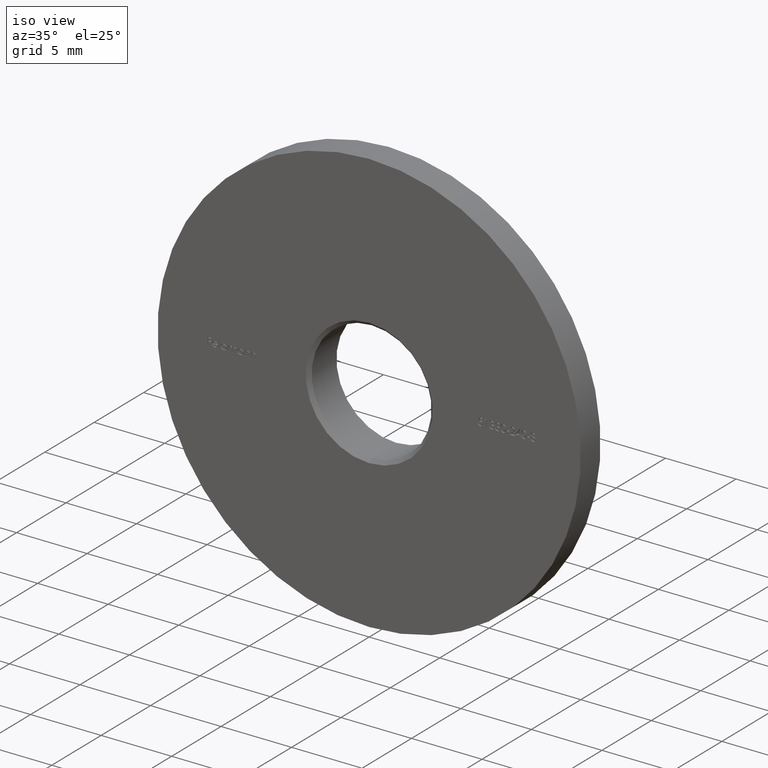
[diagram: clean part render]
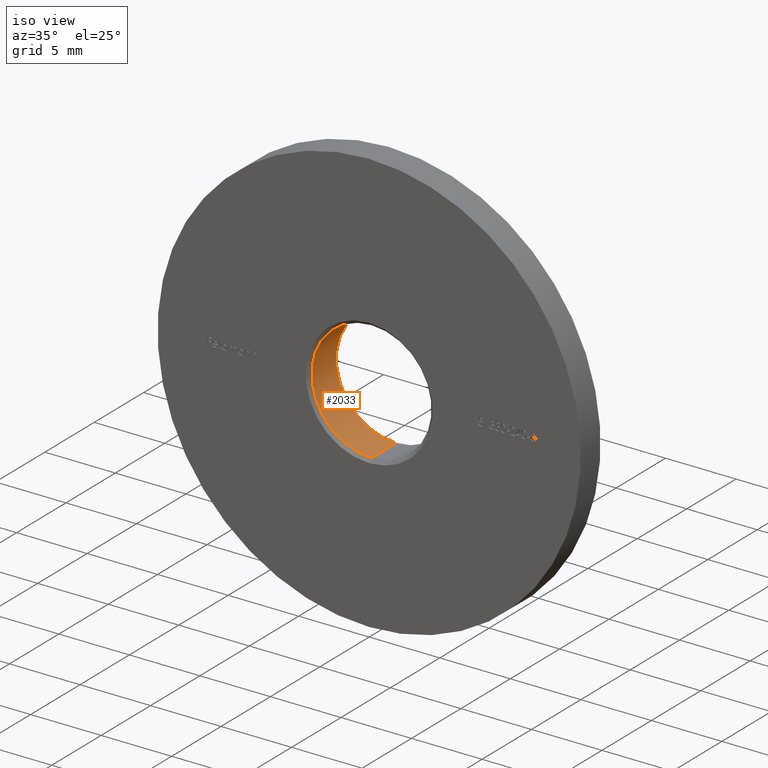
[diagram: same view with one face highlighted and labeled with its STEP entity id]
A machine part, iso view. The second image highlights one B-rep face of the part: STEP entity #2033.
In plain terms, the highlighted cylindrical surface (partial cylindrical patch) has radius 4.25 mm, axis along (-0, -1, -0).
Its self-contained STEP definition (entity closure, byte-faithful):
#521 = EDGE_CURVE ( 'NONE', #1969, #4151, #4873, .T. ) ;
#1177 = CARTESIAN_POINT ( 'NONE',  ( 0.000000000000000000, 2.750000000000005773, -4.250000000000000000 ) ) ;
#1194 = LINE ( 'NONE', #6022, #11673 ) ;
#1400 = CYLINDRICAL_SURFACE ( 'NONE', #13849, 4.250000000000000000 ) ;
#1969 = VERTEX_POINT ( 'NONE', #14505 ) ;
#2033 = ADVANCED_FACE ( 'NONE', ( #10440 ), #1400, .F. ) ;
#3411 = ORIENTED_EDGE ( 'NONE', *, *, #4910, .T. ) ;
#3525 = EDGE_CURVE ( 'NONE', #9772, #1969, #1194, .T. ) ;
#4146 = DIRECTION ( 'NONE',  ( 0.000000000000000000, 0.000000000000000000, -1.000000000000000000 ) ) ;
#4151 = VERTEX_POINT ( 'NONE', #10380 ) ;
#4873 = CIRCLE ( 'NONE', #8430, 4.250000000000000000 ) ;
#4910 = EDGE_CURVE ( 'NONE', #13301, #9772, #10061, .T. ) ;
#4914 = ORIENTED_EDGE ( 'NONE', *, *, #8652, .F. ) ;
#4970 = AXIS2_PLACEMENT_3D ( 'NONE', #14233, #9675, #7307 ) ;
#5847 = DIRECTION ( 'NONE',  ( 0.000000000000000000, 0.000000000000000000, 1.000000000000000000 ) ) ;
#6005 = ORIENTED_EDGE ( 'NONE', *, *, #521, .T. ) ;
#6022 = CARTESIAN_POINT ( 'NONE',  ( 5.204748896376250699E-16, 3.000000000000000000, 4.250000000000000000 ) ) ;
#6718 = EDGE_LOOP ( 'NONE', ( #3411, #7830, #6005, #4914 ) ) ;
#6775 = DIRECTION ( 'NONE',  ( -0.000000000000000000, -1.000000000000000000, -0.000000000000000000 ) ) ;
#7157 = DIRECTION ( 'NONE',  ( -0.000000000000000000, -1.000000000000000000, -0.000000000000000000 ) ) ;
#7307 = DIRECTION ( 'NONE',  ( 0.000000000000000000, 0.000000000000000000, 1.000000000000000000 ) ) ;
#7578 = DIRECTION ( 'NONE',  ( -0.000000000000000000, -1.000000000000000000, -0.000000000000000000 ) ) ;
#7830 = ORIENTED_EDGE ( 'NONE', *, *, #3525, .T. ) ;
#8430 = AXIS2_PLACEMENT_3D ( 'NONE', #14073, #7157, #5847 ) ;
#8433 = DIRECTION ( 'NONE',  ( -0.000000000000000000, -1.000000000000000000, -0.000000000000000000 ) ) ;
#8457 = LINE ( 'NONE', #14756, #14781 ) ;
#8652 = EDGE_CURVE ( 'NONE', #13301, #4151, #8457, .T. ) ;
#8659 = CARTESIAN_POINT ( 'NONE',  ( 5.204748896376250699E-16, 2.750000000000005773, 4.250000000000000000 ) ) ;
#9675 = DIRECTION ( 'NONE',  ( 0.000000000000000000, 1.000000000000000000, 0.000000000000000000 ) ) ;
#9772 = VERTEX_POINT ( 'NONE', #8659 ) ;
#9957 = CARTESIAN_POINT ( 'NONE',  ( 0.000000000000000000, 3.000000000000000000, 0.000000000000000000 ) ) ;
#10061 = CIRCLE ( 'NONE', #4970, 4.250000000000000000 ) ;
#10380 = CARTESIAN_POINT ( 'NONE',  ( 0.000000000000000000, 0.2499999999999924227, -4.250000000000000000 ) ) ;
#10440 = FACE_OUTER_BOUND ( 'NONE', #6718, .T. ) ;
#11673 = VECTOR ( 'NONE', #8433, 1000.000000000000000 ) ;
#13301 = VERTEX_POINT ( 'NONE', #1177 ) ;
#13849 = AXIS2_PLACEMENT_3D ( 'NONE', #9957, #7578, #4146 ) ;
#14073 = CARTESIAN_POINT ( 'NONE',  ( 0.000000000000000000, 0.2499999999999924227, 0.000000000000000000 ) ) ;
#14233 = CARTESIAN_POINT ( 'NONE',  ( 0.000000000000000000, 2.750000000000005773, 0.000000000000000000 ) ) ;
#14505 = CARTESIAN_POINT ( 'NONE',  ( 5.204748896376250699E-16, 0.2499999999999924227, 4.250000000000000000 ) ) ;
#14756 = CARTESIAN_POINT ( 'NONE',  ( 0.000000000000000000, 3.000000000000000000, -4.250000000000000000 ) ) ;
#14781 = VECTOR ( 'NONE', #6775, 1000.000000000000000 ) ;